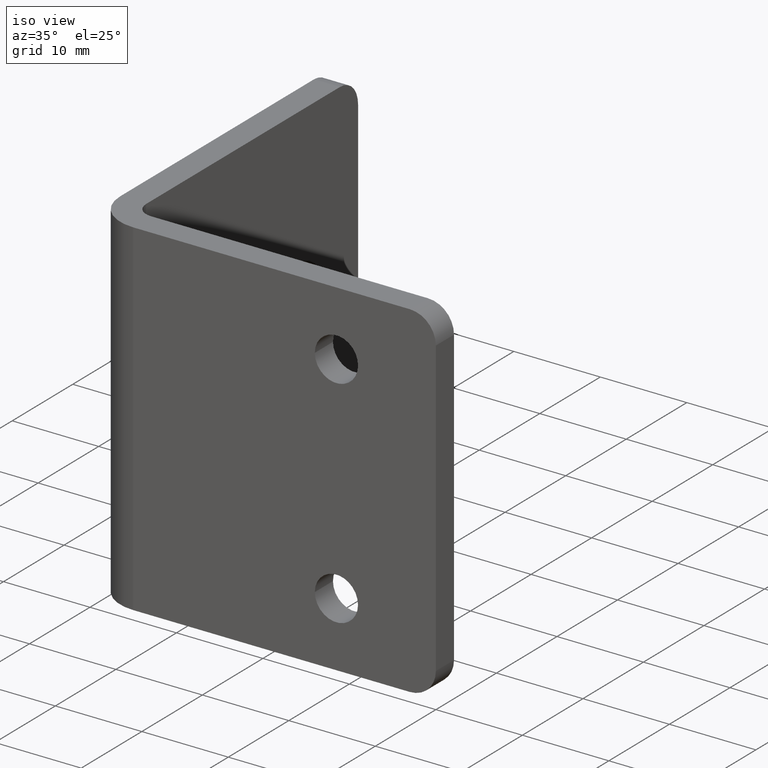
[diagram: clean part render]
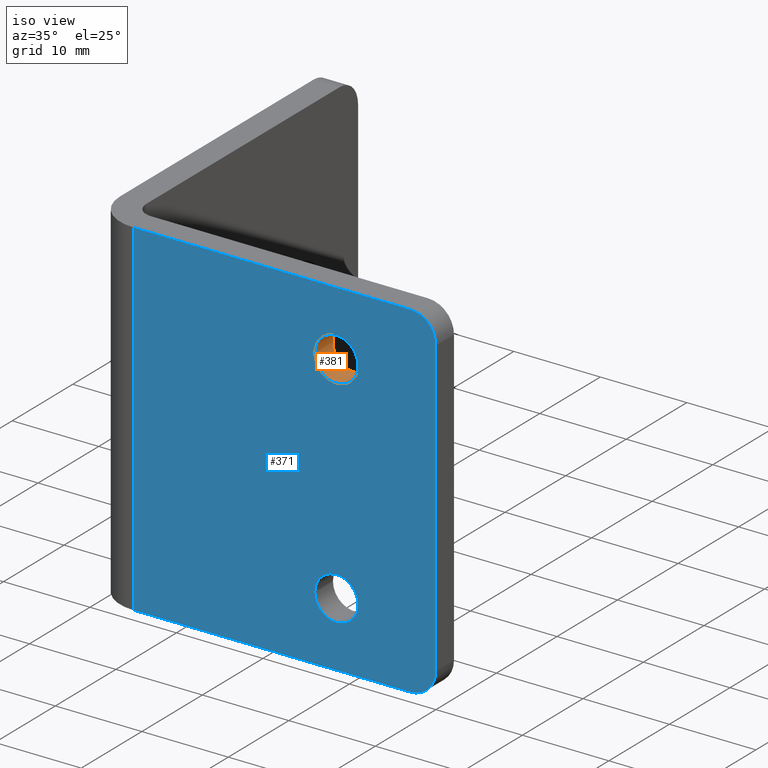
[diagram: same view with the hole feature highlighted: cylindrical wall and planar end face, labeled with their STEP entity ids]
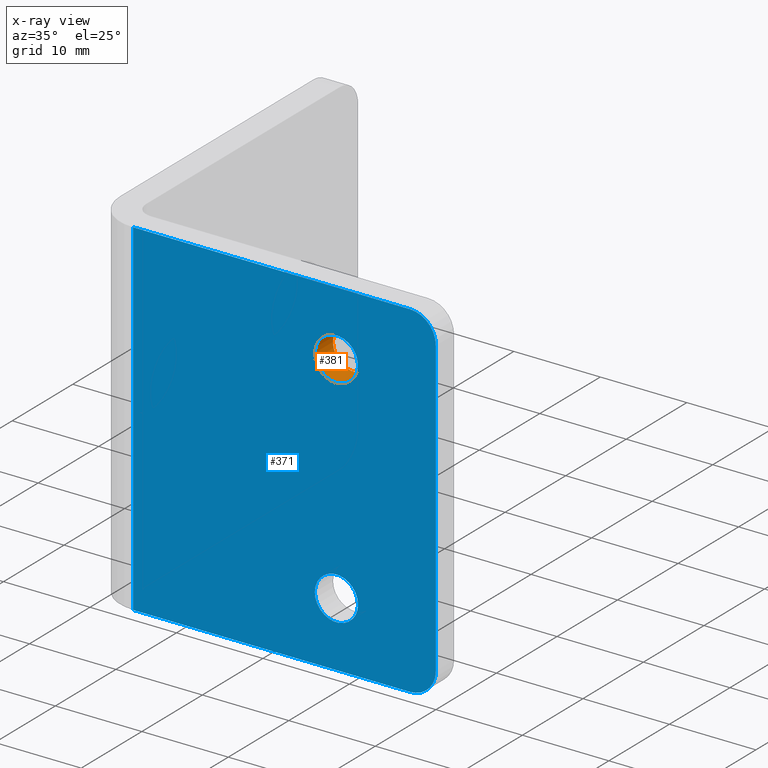
[diagram: x-ray of the same camera — body ghosted, the hole faces saturated]
A machine part, iso view. The highlighted faces form one hole feature of diameter 5 mm: the cylindrical wall (entity #381, orange) and its adjacent planar end face (entity #371, blue) — they share a circular edge in the B-rep.
The next image is the same camera in x-ray (body ghosted, the hole faces saturated) — the bore reads through the body.
Wall:
#47=FACE_OUTER_BOUND('',#73,.T.);
#73=EDGE_LOOP('',(#311,#312,#313,#314));
#113=LINE('',#660,#145);
#145=VECTOR('',#540,2.5);
#154=CIRCLE('',#420,2.5);
#165=CIRCLE('',#441,2.5);
#180=VERTEX_POINT('',#598);
#201=VERTEX_POINT('',#658);
#214=EDGE_CURVE('',#180,#180,#154,.T.);
#243=EDGE_CURVE('',#201,#201,#165,.T.);
#244=EDGE_CURVE('',#201,#180,#113,.T.);
#311=ORIENTED_EDGE('',*,*,#243,.F.);
#312=ORIENTED_EDGE('',*,*,#244,.T.);
#313=ORIENTED_EDGE('',*,*,#214,.F.);
#314=ORIENTED_EDGE('',*,*,#244,.F.);
#365=CYLINDRICAL_SURFACE('',#440,2.5);
#381=ADVANCED_FACE('',(#47),#365,.F.);
#420=AXIS2_PLACEMENT_3D('',#599,#478,#479);
#440=AXIS2_PLACEMENT_3D('',#657,#536,#537);
#441=AXIS2_PLACEMENT_3D('',#659,#538,#539);
#478=DIRECTION('center_axis',(0.,1.,0.));
#479=DIRECTION('ref_axis',(1.,0.,0.));
#536=DIRECTION('center_axis',(0.,1.,0.));
#537=DIRECTION('ref_axis',(1.,0.,0.));
#538=DIRECTION('center_axis',(0.,-1.,0.));
#539=DIRECTION('ref_axis',(1.,0.,0.));
#540=DIRECTION('',(0.,-1.,0.));
#598=CARTESIAN_POINT('',(26.,0.,12.5));
#599=CARTESIAN_POINT('Origin',(28.5,0.,12.5));
#657=CARTESIAN_POINT('Origin',(28.5,1.5,12.5));
#658=CARTESIAN_POINT('',(26.,3.,12.5));
#659=CARTESIAN_POINT('Origin',(28.5,3.,12.5));
#660=CARTESIAN_POINT('',(26.,1.5,12.5));
End face:
#15=FACE_BOUND('',#60,.T.);
#16=FACE_BOUND('',#61,.T.);
#24=PLANE('',#418);
#37=FACE_OUTER_BOUND('',#59,.T.);
#59=EDGE_LOOP('',(#263,#264,#265,#266,#267,#268));
#60=EDGE_LOOP('',(#269));
#61=EDGE_LOOP('',(#270));
#89=LINE('',#586,#121);
#92=LINE('',#592,#124);
#93=LINE('',#596,#125);
#94=LINE('',#597,#126);
#121=VECTOR('',#468,10.);
#124=VECTOR('',#473,10.);
#125=VECTOR('',#476,10.);
#126=VECTOR('',#477,10.);
#152=CIRCLE('',#416,3.);
#153=CIRCLE('',#419,3.);
#154=CIRCLE('',#420,2.5);
#155=CIRCLE('',#421,2.5);
#173=VERTEX_POINT('',#579);
#174=VERTEX_POINT('',#581);
#175=VERTEX_POINT('',#585);
#177=VERTEX_POINT('',#591);
#178=VERTEX_POINT('',#593);
#179=VERTEX_POINT('',#595);
#180=VERTEX_POINT('',#598);
#181=VERTEX_POINT('',#600);
#205=EDGE_CURVE('',#173,#174,#152,.T.);
#207=EDGE_CURVE('',#175,#174,#89,.T.);
#210=EDGE_CURVE('',#173,#177,#92,.T.);
#211=EDGE_CURVE('',#178,#177,#153,.T.);
#212=EDGE_CURVE('',#178,#179,#93,.T.);
#213=EDGE_CURVE('',#179,#175,#94,.T.);
#214=EDGE_CURVE('',#180,#180,#154,.T.);
#215=EDGE_CURVE('',#181,#181,#155,.T.);
#263=ORIENTED_EDGE('',*,*,#205,.F.);
#264=ORIENTED_EDGE('',*,*,#210,.T.);
#265=ORIENTED_EDGE('',*,*,#211,.F.);
#266=ORIENTED_EDGE('',*,*,#212,.T.);
#267=ORIENTED_EDGE('',*,*,#213,.T.);
#268=ORIENTED_EDGE('',*,*,#207,.T.);
#269=ORIENTED_EDGE('',*,*,#214,.T.);
#270=ORIENTED_EDGE('',*,*,#215,.T.);
#371=ADVANCED_FACE('',(#37,#15,#16),#24,.F.);
#416=AXIS2_PLACEMENT_3D('',#582,#463,#464);
#418=AXIS2_PLACEMENT_3D('',#590,#471,#472);
#419=AXIS2_PLACEMENT_3D('',#594,#474,#475);
#420=AXIS2_PLACEMENT_3D('',#599,#478,#479);
#421=AXIS2_PLACEMENT_3D('',#601,#480,#481);
#463=DIRECTION('center_axis',(0.,1.,0.));
#464=DIRECTION('ref_axis',(0.707106781186548,0.,-0.707106781186547));
#468=DIRECTION('',(1.,0.,0.));
#471=DIRECTION('center_axis',(0.,1.,0.));
#472=DIRECTION('ref_axis',(0.,0.,1.));
#473=DIRECTION('',(5.55111512312578E-16,0.,1.));
#474=DIRECTION('center_axis',(0.,1.,0.));
#475=DIRECTION('ref_axis',(0.707106781186547,0.,0.707106781186547));
#476=DIRECTION('',(-1.,0.,1.11022302462516E-16));
#477=DIRECTION('',(-1.66533453693774E-16,0.,-1.));
#478=DIRECTION('center_axis',(0.,1.,0.));
#479=DIRECTION('ref_axis',(1.,0.,0.));
#480=DIRECTION('center_axis',(0.,1.,0.));
#481=DIRECTION('ref_axis',(1.,0.,0.));
#579=CARTESIAN_POINT('',(40.,0.,-17.));
#581=CARTESIAN_POINT('',(37.,0.,-20.));
#582=CARTESIAN_POINT('Origin',(37.,0.,-17.));
#585=CARTESIAN_POINT('',(5.,-5.55111512312578E-16,-20.));
#586=CARTESIAN_POINT('',(-4.44089209850063E-15,0.,-20.));
#590=CARTESIAN_POINT('Origin',(20.,0.,-5.55111512312578E-15));
#591=CARTESIAN_POINT('',(40.,0.,17.));
#592=CARTESIAN_POINT('',(40.,0.,-20.));
#593=CARTESIAN_POINT('',(37.,0.,20.));
#594=CARTESIAN_POINT('Origin',(37.,0.,17.));
#595=CARTESIAN_POINT('',(5.,-5.55111512312578E-16,20.));
#596=CARTESIAN_POINT('',(40.,0.,20.));
#597=CARTESIAN_POINT('',(5.,0.,9.99999999999999));
#598=CARTESIAN_POINT('',(26.,0.,12.5));
#599=CARTESIAN_POINT('Origin',(28.5,0.,12.5));
#600=CARTESIAN_POINT('',(26.,0.,-12.5));
#601=CARTESIAN_POINT('Origin',(28.5,0.,-12.5));